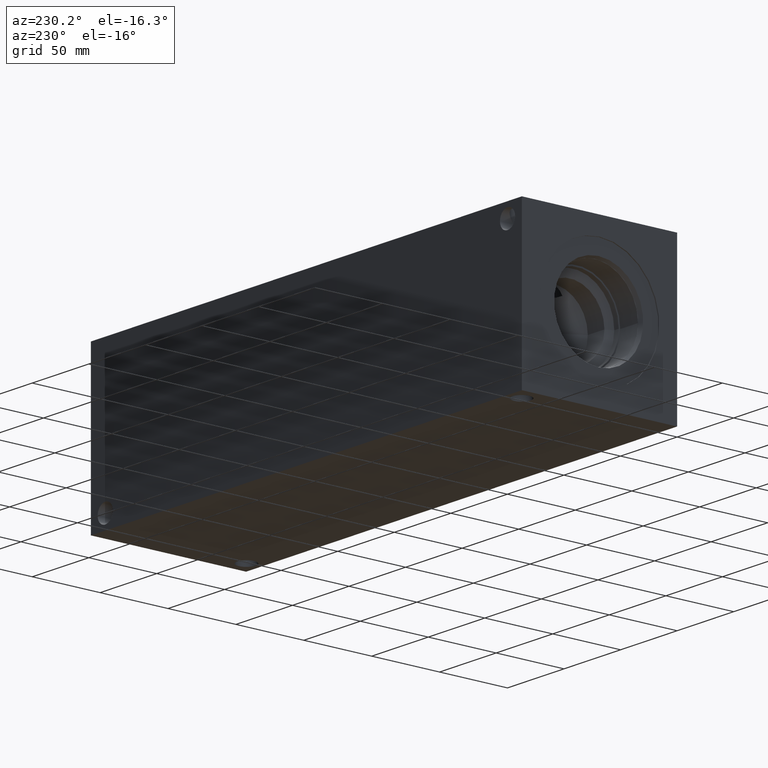
[diagram: clean part render]
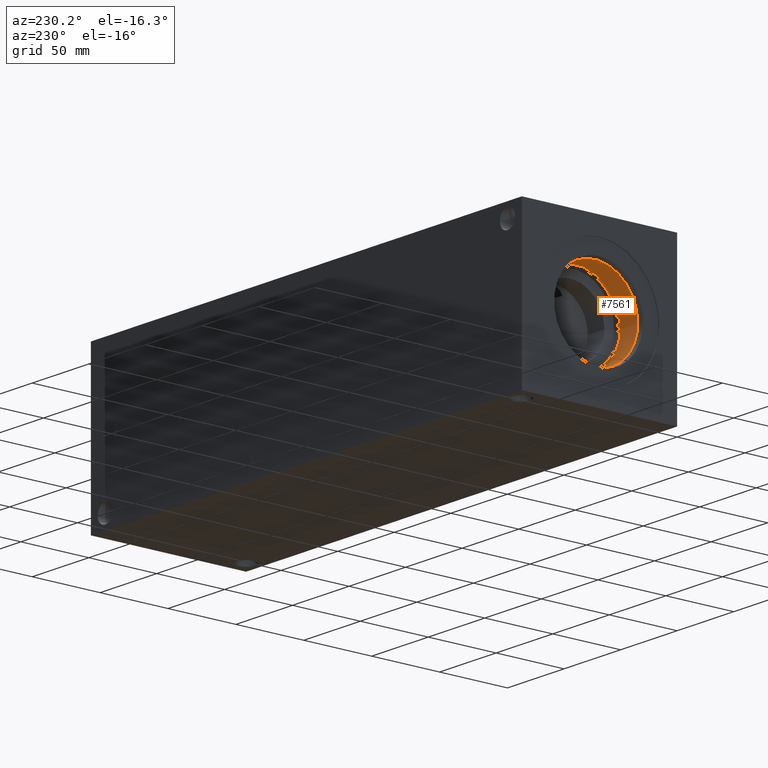
[diagram: same view with one face highlighted and labeled with its STEP entity id]
A machine part, auxiliary view. The second image highlights one B-rep face of the part: STEP entity #7561.
In plain terms, the highlighted cylindrical surface (bore or boss wall) has radius 31.75 mm, axis along (-1, 0, 0).
Its self-contained STEP definition (entity closure, byte-faithful):
#71=CYLINDRICAL_SURFACE('',#7960,31.75);
#168=CIRCLE('',#7957,31.75);
#169=CIRCLE('',#7958,31.75);
#171=CIRCLE('',#7961,31.75);
#172=CIRCLE('',#7962,31.75);
#917=FACE_OUTER_BOUND('',#1343,.T.);
#1343=EDGE_LOOP('',(#6582,#6583,#6584,#6585,#6586,#6587));
#2073=LINE('',#12967,#2795);
#2795=VECTOR('',#9443,31.75);
#3493=VERTEX_POINT('',#12957);
#3494=VERTEX_POINT('',#12958);
#3496=VERTEX_POINT('',#12964);
#3497=VERTEX_POINT('',#12965);
#4531=EDGE_CURVE('',#3493,#3494,#168,.T.);
#4532=EDGE_CURVE('',#3494,#3493,#169,.T.);
#4534=EDGE_CURVE('',#3496,#3497,#171,.T.);
#4535=EDGE_CURVE('',#3496,#3494,#2073,.T.);
#4536=EDGE_CURVE('',#3497,#3496,#172,.T.);
#6582=ORIENTED_EDGE('',*,*,#4534,.F.);
#6583=ORIENTED_EDGE('',*,*,#4535,.T.);
#6584=ORIENTED_EDGE('',*,*,#4531,.F.);
#6585=ORIENTED_EDGE('',*,*,#4532,.F.);
#6586=ORIENTED_EDGE('',*,*,#4535,.F.);
#6587=ORIENTED_EDGE('',*,*,#4536,.F.);
#7561=ADVANCED_FACE('',(#917),#71,.F.);
#7957=AXIS2_PLACEMENT_3D('',#12959,#9433,#9434);
#7958=AXIS2_PLACEMENT_3D('',#12960,#9435,#9436);
#7960=AXIS2_PLACEMENT_3D('',#12963,#9439,#9440);
#7961=AXIS2_PLACEMENT_3D('',#12966,#9441,#9442);
#7962=AXIS2_PLACEMENT_3D('',#12968,#9444,#9445);
#9433=DIRECTION('center_axis',(-1.,0.,0.));
#9434=DIRECTION('ref_axis',(0.,1.,0.));
#9435=DIRECTION('center_axis',(-1.,0.,0.));
#9436=DIRECTION('ref_axis',(0.,1.,0.));
#9439=DIRECTION('center_axis',(-1.,0.,0.));
#9440=DIRECTION('ref_axis',(0.,1.,0.));
#9441=DIRECTION('center_axis',(1.,0.,0.));
#9442=DIRECTION('ref_axis',(0.,1.,0.));
#9443=DIRECTION('',(1.,0.,0.));
#9444=DIRECTION('center_axis',(1.,0.,0.));
#9445=DIRECTION('ref_axis',(0.,1.,0.));
#12957=CARTESIAN_POINT('',(19.8374,88.9,57.15));
#12958=CARTESIAN_POINT('',(19.8374,25.4,57.15));
#12959=CARTESIAN_POINT('Origin',(19.8374,57.15,57.15));
#12960=CARTESIAN_POINT('Origin',(19.8374,57.15,57.15));
#12963=CARTESIAN_POINT('Origin',(9.9187,57.15,57.15));
#12964=CARTESIAN_POINT('',(4.2926,25.4,57.15));
#12965=CARTESIAN_POINT('',(4.2926,57.15,25.4));
#12966=CARTESIAN_POINT('Origin',(4.2926,57.15,57.15));
#12967=CARTESIAN_POINT('',(9.9187,25.4,57.15));
#12968=CARTESIAN_POINT('Origin',(4.2926,57.15,57.15));